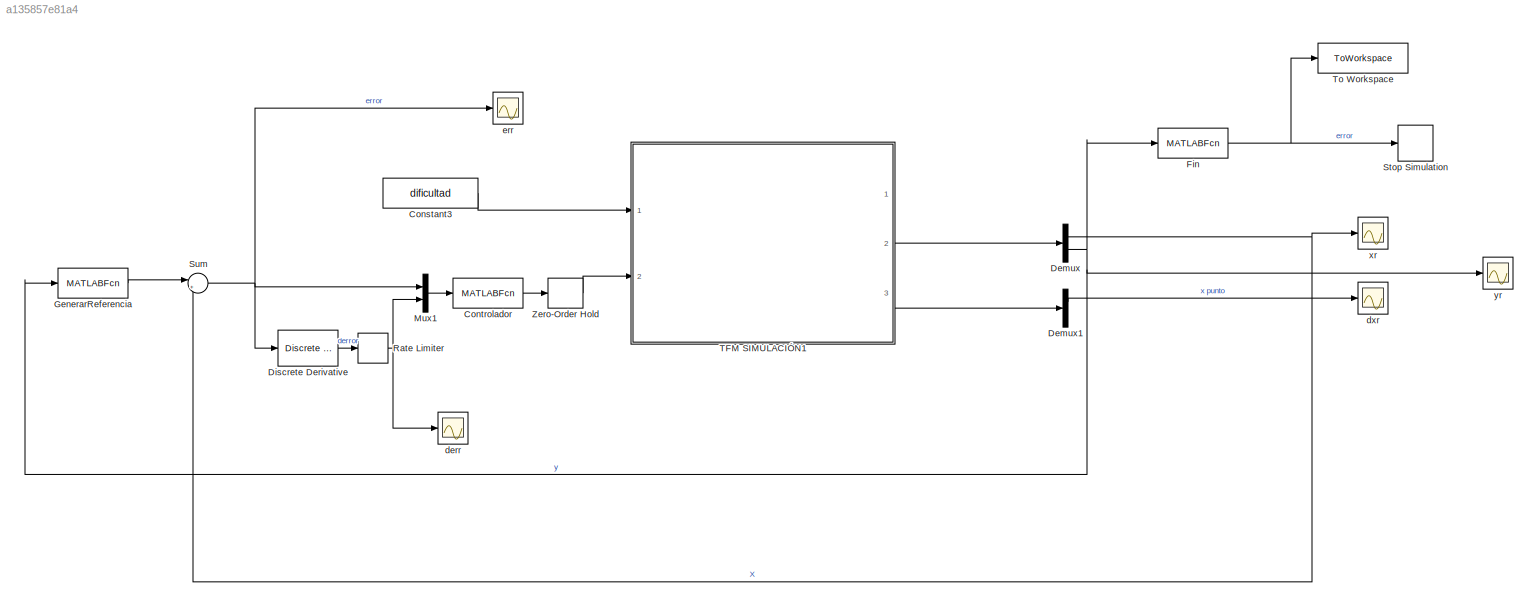
MODEL slx_a135857e81a4
KIND model
CONFIG AbsTol = auto
CONFIG EnableMultiTasking = off
CONFIG FixedStep = auto
CONFIG MaxStep = auto
CONFIG MinStep = auto
CONFIG RelTol = 1e-3
CONFIG SampleTimeConstraint = Unconstrained
CONFIG SolverName = VariableStepAuto
CONFIG StartTime = 0.0
CONFIG StopTime = tsim
BLOCK [Constant] Constant3
  Value = dificultad
BLOCK [MATLABFcn] Controlador
  MATLABFcn = ControlBorrosoErrorLUT(u(1), u(2), LUT, FSetError, FSetDError)
  OutputDimensions = 1
  Ports = [1, 1]
BLOCK [Demux] Demux
  Outputs = 2
  Ports = [1, 2]
BLOCK [Demux] Demux1
  Outputs = 2
  Ports = [1, 2]
BLOCK [Reference] Discrete Derivative  REF=simulink/Discrete/Discrete Derivative
  Ports = [1, 1]
  SourceBlock = simulink/Discrete/Discrete Derivative
  SourceProductBaseCode = SL
  SourceType = Discrete Derivative
BLOCK [MATLABFcn] Fin
  MATLABFcn = fin(u, riel)
  OutputDimensions = 1
  Ports = [1, 1]
BLOCK [MATLABFcn] GenerarReferencia
  MATLABFcn = GenerarReferencia(u, riel)
  Ports = [1, 1]
BLOCK [Mux] Mux1
  DisplayOption = bar
  Inputs = 2
  Ports = [2, 1]
BLOCK [RateLimiter] Rate Limiter
  FallingSlewLimit = -2
  RisingSlewLimit = 2
  SampleTimeMode = inherited
BLOCK [Stop] Stop Simulation
BLOCK [Sum] Sum
  Inputs = |+-
  Ports = [2, 1]
BLOCK [ModelReference] TFM SIMULACIÓN1
  Gain = 0.05
  Gain2 = 0.0223
  ModelNameDialog = TFM_SIMULACI_N1.slx
  ModelReferenceVersion = 9.0
  Ports = [2, 3]
  UsingDefaultArgumentValue = 0,0
BLOCK [ToWorkspace] To Workspace
  FixptAsFi = on
  MaxDataPoints = inf
  Ports = [1]
  SampleTime = -1
  VariableName = victory
BLOCK [ZeroOrderHold] Zero-Order Hold
  SampleTime = Ts
BLOCK [Scope] derr
  Floating = off
  NumInputPorts = 1
  Ports = [1]
  ScopeSpecificationString = Simulink.scopes.TimeScopeBlockCfg('CurrentConfiguration', extmgr.ConfigurationSet(extmgr.Configuration('Core','General UI',true),extmgr.Configuration('Core','Source UI',true),extmgr.Configuration('Sources','WiredSimulink',true,'DataLoggingVariableName','derr','DataLogging',true,'DataLoggingSaveFormat','Array','SampleTime','Ts'),extmgr.Configuration('Visuals','Time Domain',true,'SerializedDisplays'...<+1426ch>
BLOCK [Scope] dxr
  Floating = off
  NumInputPorts = 1
  Ports = [1]
  ScopeSpecificationString = Simulink.scopes.TimeScopeBlockCfg('CurrentConfiguration', extmgr.ConfigurationSet(extmgr.Configuration('Core','General UI',true),extmgr.Configuration('Core','Source UI',true),extmgr.Configuration('Sources','WiredSimulink',true,'DataLoggingVariableName','dxr','DataLogging',true,'DataLoggingSaveFormat','Array','SampleTime','Ts'),extmgr.Configuration('Visuals','Time Domain',true,'SerializedDisplays',...<+1428ch>
BLOCK [Scope] err
  Floating = off
  NumInputPorts = 1
  Ports = [1]
  ScopeSpecificationString = Simulink.scopes.TimeScopeBlockCfg('CurrentConfiguration', extmgr.ConfigurationSet(extmgr.Configuration('Core','General UI',true),extmgr.Configuration('Core','Source UI',true),extmgr.Configuration('Sources','WiredSimulink',true,'DataLoggingVariableName','err','DataLogging',true,'DataLoggingSaveFormat','Array','SampleTime','Ts'),extmgr.Configuration('Visuals','Time Domain',true,'SerializedDisplays',...<+1422ch>
BLOCK [Scope] xr
  Floating = off
  NumInputPorts = 1
  Ports = [1]
  ScopeSpecificationString = Simulink.scopes.TimeScopeBlockCfg('CurrentConfiguration', extmgr.ConfigurationSet(extmgr.Configuration('Core','General UI',true),extmgr.Configuration('Core','Source UI',true),extmgr.Configuration('Sources','WiredSimulink',true,'DataLoggingVariableName','xr','DataLogging',true,'DataLoggingSaveFormat','Array','SampleTime','Ts'),extmgr.Configuration('Visuals','Time Domain',true,'SerializedDisplays',{...<+1421ch>
BLOCK [Scope] yr
  Floating = off
  NumInputPorts = 1
  Ports = [1]
  ScopeSpecificationString = Simulink.scopes.TimeScopeBlockCfg('CurrentConfiguration', extmgr.ConfigurationSet(extmgr.Configuration('Core','General UI',true),extmgr.Configuration('Core','Source UI',true),extmgr.Configuration('Sources','WiredSimulink',true,'DataLoggingVariableName','yr','DataLogging',true,'DataLoggingSaveFormat','Array','SampleTime','Ts'),extmgr.Configuration('Visuals','Time Domain',true,'SerializedDisplays',{...<+1421ch>
LINE Constant3:1 -> TFM SIMULACIÓN1:1
LINE Controlador:1 -> Zero-Order Hold:1
LINE Demux1:1 -> dxr:1
NET Demux:1 -> Sum:2, xr:1
NET Demux:2 -> Fin:1, GenerarReferencia:1, yr:1
LINE Discrete Derivative:1 -> Rate Limiter:1
NET Fin:1 -> Stop Simulation:1, To Workspace:1
LINE GenerarReferencia:1 -> Sum:1
LINE Mux1:1 -> Controlador:1
NET Rate Limiter:1 -> Mux1:2, derr:1
NET Sum:1 -> Discrete Derivative:1, Mux1:1, err:1
LINE TFM SIMULACIÓN1:2 -> Demux:1
LINE TFM SIMULACIÓN1:3 -> Demux1:1
LINE Zero-Order Hold:1 -> TFM SIMULACIÓN1:2
note: NET lines group one-source signal fan-out (src -> all destinations, sorted); 1:1 wires keep LINE
